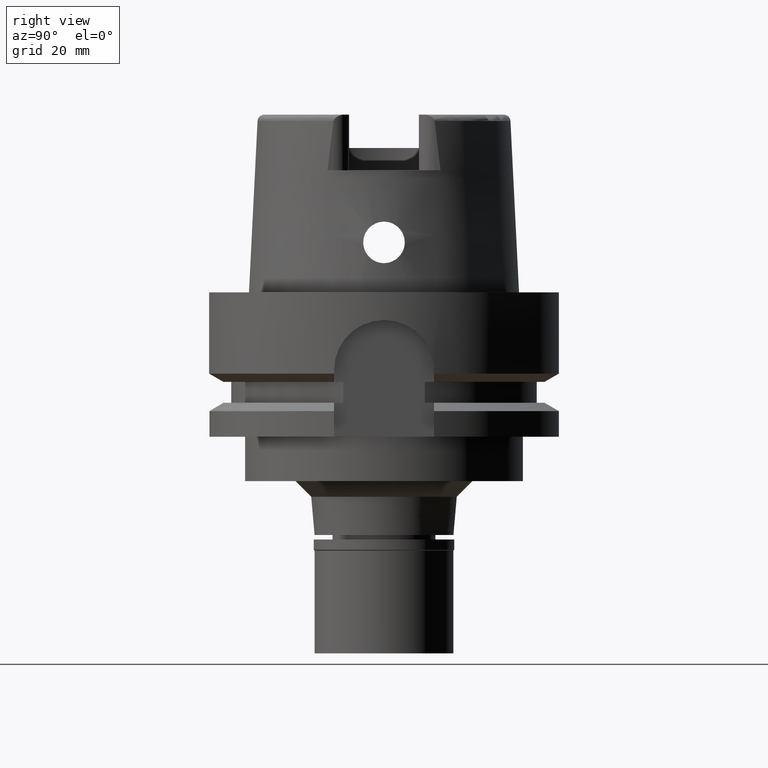
[diagram: clean part render]
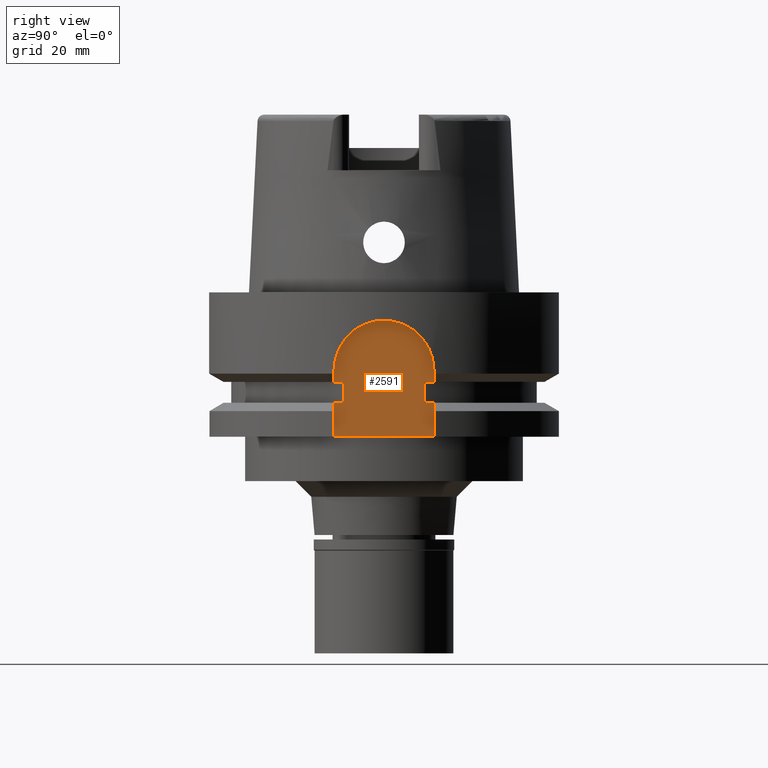
[diagram: same view with one face highlighted and labeled with its STEP entity id]
A machine part, right view. The second image highlights one B-rep face of the part: STEP entity #2591.
In plain terms, the highlighted planar face has unit normal (1, 0, 0).
Its self-contained STEP definition (entity closure, byte-faithful):
#34 = CARTESIAN_POINT ( 'NONE',  ( 26.50000000000000000, -9.000000000000000000, -26.00000000000000000 ) ) ;
#81 = EDGE_CURVE ( 'NONE', #5135, #3866, #1482, .T. ) ;
#130 = CARTESIAN_POINT ( 'NONE',  ( 26.50000000000000000, 9.000000000000000000, -16.12500000000000000 ) ) ;
#161 = ORIENTED_EDGE ( 'NONE', *, *, #5284, .T. ) ;
#328 = DIRECTION ( 'NONE',  ( 1.000000000000000000, 0.0000000000000000000, 0.0000000000000000000 ) ) ;
#408 = CARTESIAN_POINT ( 'NONE',  ( 26.50000000000000000, -7.348469228349999938, -19.87500000000000000 ) ) ;
#422 = CARTESIAN_POINT ( 'NONE',  ( 26.50000000000000000, 0.0000000000000000000, -14.00000000000000000 ) ) ;
#430 = EDGE_CURVE ( 'NONE', #5389, #2158, #3413, .T. ) ;
#461 = CARTESIAN_POINT ( 'NONE',  ( 26.50000000000000000, 9.000000000000000000, -19.87500000000000000 ) ) ;
#463 = DIRECTION ( 'NONE',  ( 0.0000000000000000000, 0.0000000000000000000, 1.000000000000000000 ) ) ;
#528 = DIRECTION ( 'NONE',  ( 2.366280491871000116E-14, 1.000000000000000000, 0.0000000000000000000 ) ) ;
#557 = VERTEX_POINT ( 'NONE', #408 ) ;
#632 = EDGE_CURVE ( 'NONE', #2598, #557, #3935, .T. ) ;
#684 = ORIENTED_EDGE ( 'NONE', *, *, #81, .F. ) ;
#763 = DIRECTION ( 'NONE',  ( 0.0000000000000000000, 1.000000000000000000, 0.0000000000000000000 ) ) ;
#868 = LINE ( 'NONE', #2231, #2466 ) ;
#883 = DIRECTION ( 'NONE',  ( 0.0000000000000000000, 1.000000000000000000, 0.0000000000000000000 ) ) ;
#909 = CARTESIAN_POINT ( 'NONE',  ( 26.50000000000000000, -9.000000000000000000, -26.00000000000000000 ) ) ;
#929 = CARTESIAN_POINT ( 'NONE',  ( 26.50000000000000000, -9.000000000000000000, -16.12500000000000000 ) ) ;
#957 = ORIENTED_EDGE ( 'NONE', *, *, #4443, .F. ) ;
#969 = ORIENTED_EDGE ( 'NONE', *, *, #2788, .F. ) ;
#1007 = CARTESIAN_POINT ( 'NONE',  ( 26.50000000000000000, 7.348469228349999938, -16.12500000000000000 ) ) ;
#1124 = CARTESIAN_POINT ( 'NONE',  ( 26.50000000000000000, 9.000000000000000000, -14.00000000000000000 ) ) ;
#1136 = CARTESIAN_POINT ( 'NONE',  ( 26.50000000000000000, -9.000000000000000000, -16.12500000000000000 ) ) ;
#1248 = CARTESIAN_POINT ( 'NONE',  ( 26.50000000000000000, -9.000000000000000000, -19.87500000000000000 ) ) ;
#1296 = EDGE_CURVE ( 'NONE', #4841, #3866, #3683, .T. ) ;
#1338 = VERTEX_POINT ( 'NONE', #2196 ) ;
#1355 = CARTESIAN_POINT ( 'NONE',  ( 26.50000000000000000, 9.000000000000000000, -26.00000000000000000 ) ) ;
#1408 = CARTESIAN_POINT ( 'NONE',  ( 26.50000000000000000, 9.000000000000000000, -14.00000000000000000 ) ) ;
#1482 = LINE ( 'NONE', #1408, #3083 ) ;
#1561 = VECTOR ( 'NONE', #4446, 1000.000000000000000 ) ;
#1643 = ORIENTED_EDGE ( 'NONE', *, *, #2501, .F. ) ;
#1763 = DIRECTION ( 'NONE',  ( 0.0000000000000000000, 0.0000000000000000000, 1.000000000000000000 ) ) ;
#1784 = ORIENTED_EDGE ( 'NONE', *, *, #1877, .F. ) ;
#1802 = LINE ( 'NONE', #2699, #1561 ) ;
#1804 = DIRECTION ( 'NONE',  ( -2.366280491871000116E-14, 1.000000000000000000, 0.0000000000000000000 ) ) ;
#1815 = VECTOR ( 'NONE', #528, 1000.000000000000000 ) ;
#1877 = EDGE_CURVE ( 'NONE', #1927, #5135, #3721, .T. ) ;
#1927 = VERTEX_POINT ( 'NONE', #3564 ) ;
#1956 = ORIENTED_EDGE ( 'NONE', *, *, #1296, .T. ) ;
#1970 = VECTOR ( 'NONE', #4695, 1000.000000000000000 ) ;
#2158 = VERTEX_POINT ( 'NONE', #1355 ) ;
#2196 = CARTESIAN_POINT ( 'NONE',  ( 26.50000000000000000, -9.000000000000000000, -16.12500000000000000 ) ) ;
#2219 = VECTOR ( 'NONE', #3321, 1000.000000000000000 ) ;
#2231 = CARTESIAN_POINT ( 'NONE',  ( 26.50000000000000000, 7.348469228349999938, -19.87500000000000000 ) ) ;
#2263 = CARTESIAN_POINT ( 'NONE',  ( 26.50000000000000000, -9.000000000000000000, -26.00000000000000000 ) ) ;
#2294 = ORIENTED_EDGE ( 'NONE', *, *, #632, .F. ) ;
#2466 = VECTOR ( 'NONE', #463, 1000.000000000000000 ) ;
#2501 = EDGE_CURVE ( 'NONE', #1338, #1927, #4210, .T. ) ;
#2564 = LINE ( 'NONE', #909, #5117 ) ;
#2591 = ADVANCED_FACE ( 'NONE', ( #3837 ), #5131, .T. ) ;
#2598 = VERTEX_POINT ( 'NONE', #1248 ) ;
#2666 = CARTESIAN_POINT ( 'NONE',  ( 26.50000000000000000, 9.000000000000000000, -19.87500000000000000 ) ) ;
#2679 = ORIENTED_EDGE ( 'NONE', *, *, #4713, .T. ) ;
#2699 = CARTESIAN_POINT ( 'NONE',  ( 26.50000000000000000, -7.348469228349999938, -16.12500000000000000 ) ) ;
#2788 = EDGE_CURVE ( 'NONE', #4882, #5389, #4449, .T. ) ;
#2791 = EDGE_CURVE ( 'NONE', #1338, #4598, #3950, .T. ) ;
#2806 = VERTEX_POINT ( 'NONE', #2263 ) ;
#2933 = DIRECTION ( 'NONE',  ( 0.0000000000000000000, 0.0000000000000000000, 1.000000000000000000 ) ) ;
#2973 = DIRECTION ( 'NONE',  ( -2.366280491871000116E-14, 1.000000000000000000, 0.0000000000000000000 ) ) ;
#3002 = CARTESIAN_POINT ( 'NONE',  ( 26.50000000000000000, -9.000000000000000000, -19.87500000000000000 ) ) ;
#3083 = VECTOR ( 'NONE', #3207, 1000.000000000000000 ) ;
#3207 = DIRECTION ( 'NONE',  ( 0.0000000000000000000, 0.0000000000000000000, -1.000000000000000000 ) ) ;
#3321 = DIRECTION ( 'NONE',  ( 2.366280491871000116E-14, 1.000000000000000000, 0.0000000000000000000 ) ) ;
#3372 = DIRECTION ( 'NONE',  ( -1.000000000000000000, 0.0000000000000000000, 0.0000000000000000000 ) ) ;
#3398 = EDGE_CURVE ( 'NONE', #2806, #2158, #2564, .T. ) ;
#3413 = LINE ( 'NONE', #461, #1970 ) ;
#3462 = LINE ( 'NONE', #34, #4308 ) ;
#3564 = CARTESIAN_POINT ( 'NONE',  ( 26.50000000000000000, -9.000000000000000000, -14.00000000000000000 ) ) ;
#3621 = VECTOR ( 'NONE', #2973, 1000.000000000000000 ) ;
#3683 = LINE ( 'NONE', #5029, #2219 ) ;
#3702 = ORIENTED_EDGE ( 'NONE', *, *, #3398, .T. ) ;
#3721 = CIRCLE ( 'NONE', #5096, 9.000000000000000000 ) ;
#3837 = FACE_OUTER_BOUND ( 'NONE', #5032, .T. ) ;
#3866 = VERTEX_POINT ( 'NONE', #130 ) ;
#3935 = LINE ( 'NONE', #3002, #3621 ) ;
#3950 = LINE ( 'NONE', #929, #4563 ) ;
#4083 = VECTOR ( 'NONE', #5533, 1000.000000000000000 ) ;
#4091 = ORIENTED_EDGE ( 'NONE', *, *, #2791, .T. ) ;
#4137 = ORIENTED_EDGE ( 'NONE', *, *, #430, .F. ) ;
#4210 = LINE ( 'NONE', #1136, #4083 ) ;
#4308 = VECTOR ( 'NONE', #1763, 1000.000000000000000 ) ;
#4425 = CARTESIAN_POINT ( 'NONE',  ( 26.50000000000000000, 7.348469228349999938, -19.87500000000000000 ) ) ;
#4443 = EDGE_CURVE ( 'NONE', #2806, #2598, #3462, .T. ) ;
#4446 = DIRECTION ( 'NONE',  ( 0.0000000000000000000, 0.0000000000000000000, -1.000000000000000000 ) ) ;
#4449 = LINE ( 'NONE', #4425, #1815 ) ;
#4563 = VECTOR ( 'NONE', #1804, 1000.000000000000000 ) ;
#4598 = VERTEX_POINT ( 'NONE', #5188 ) ;
#4695 = DIRECTION ( 'NONE',  ( 0.0000000000000000000, 0.0000000000000000000, -1.000000000000000000 ) ) ;
#4713 = EDGE_CURVE ( 'NONE', #4598, #557, #1802, .T. ) ;
#4841 = VERTEX_POINT ( 'NONE', #1007 ) ;
#4882 = VERTEX_POINT ( 'NONE', #5434 ) ;
#5029 = CARTESIAN_POINT ( 'NONE',  ( 26.50000000000000000, 7.348469228349999938, -16.12500000000000000 ) ) ;
#5032 = EDGE_LOOP ( 'NONE', ( #4137, #969, #161, #1956, #684, #1784, #1643, #4091, #2679, #2294, #957, #3702 ) ) ;
#5096 = AXIS2_PLACEMENT_3D ( 'NONE', #422, #3372, #2933 ) ;
#5117 = VECTOR ( 'NONE', #883, 1000.000000000000000 ) ;
#5131 = PLANE ( 'NONE',  #5468 ) ;
#5135 = VERTEX_POINT ( 'NONE', #1124 ) ;
#5161 = CARTESIAN_POINT ( 'NONE',  ( 26.50000000000000000, 0.0000000000000000000, 0.0000000000000000000 ) ) ;
#5188 = CARTESIAN_POINT ( 'NONE',  ( 26.50000000000000000, -7.348469228349999938, -16.12500000000000000 ) ) ;
#5284 = EDGE_CURVE ( 'NONE', #4882, #4841, #868, .T. ) ;
#5389 = VERTEX_POINT ( 'NONE', #2666 ) ;
#5434 = CARTESIAN_POINT ( 'NONE',  ( 26.50000000000000000, 7.348469228349999938, -19.87500000000000000 ) ) ;
#5468 = AXIS2_PLACEMENT_3D ( 'NONE', #5161, #328, #763 ) ;
#5533 = DIRECTION ( 'NONE',  ( 0.0000000000000000000, 0.0000000000000000000, 1.000000000000000000 ) ) ;